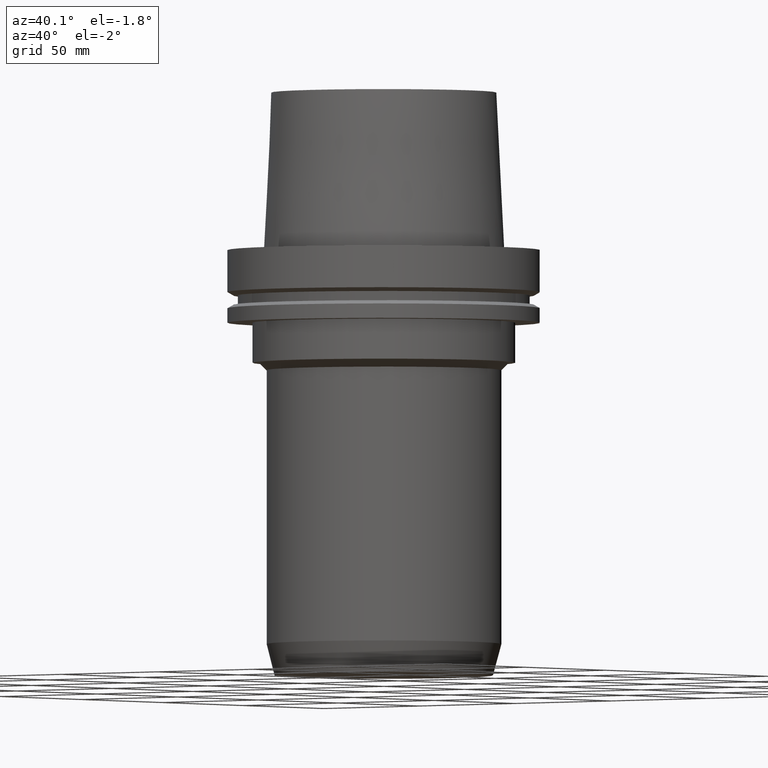
[diagram: clean part render]
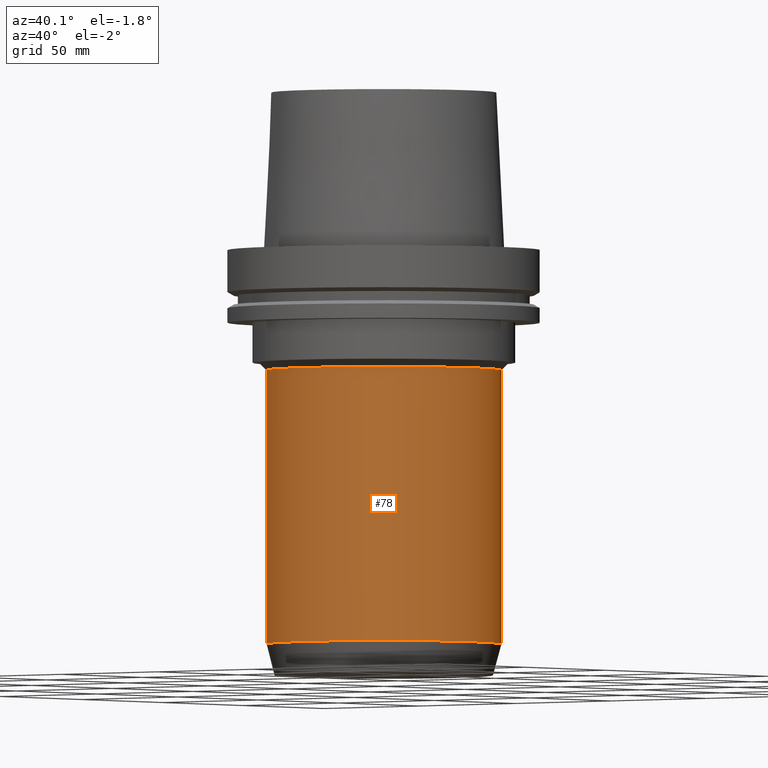
[diagram: same view with one face highlighted and labeled with its STEP entity id]
A machine part, auxiliary view. The second image highlights one B-rep face of the part: STEP entity #78.
In plain terms, the highlighted cylindrical surface (bore or boss wall) has radius 47 mm, axis along (0, 0, -1).
Its self-contained STEP definition (entity closure, byte-faithful):
#78=ADVANCED_FACE('Unnamed[1]',(#191,#192),#193,.T.);
#108=EDGE_CURVE('Unnamed[1]',#239,#239,#240,.T.);
#142=EDGE_CURVE('Unnamed[1]',#291,#291,#292,.T.);
#191=FACE_BOUND('',#339,.T.);
#192=FACE_BOUND('',#340,.T.);
#193=CYLINDRICAL_SURFACE('',#341,46.9999999999985);
#239=VERTEX_POINT('',#399);
#240=CIRCLE('',#400,46.9999999999965);
#291=VERTEX_POINT('',#464);
#292=CIRCLE('',#465,47.0000000000005);
#339=EDGE_LOOP('',(#503));
#340=EDGE_LOOP('',(#504));
#341=AXIS2_PLACEMENT_3D('',#505,#506,#507);
#399=CARTESIAN_POINT('',(2.93915231795366E-015,46.9999999999965,-48.0000000000001));
#400=AXIS2_PLACEMENT_3D('',#558,#559,#560);
#464=CARTESIAN_POINT('',(9.64409354328889E-015,47.0000000000006,-157.500000000057));
#465=AXIS2_PLACEMENT_3D('',#613,#614,#615);
#503=ORIENTED_EDGE('',*,*,#142,.F.);
#504=ORIENTED_EDGE('',*,*,#108,.T.);
#505=CARTESIAN_POINT('',(6.29162293062127E-015,1.25832458612425E-014,-102.750000000029));
#506=DIRECTION('',(6.12323399573677E-017,1.22464679914735E-016,-1.0));
#507=DIRECTION('',(-1.23259516440783E-032,1.0,1.22464679914735E-016));
#558=CARTESIAN_POINT('',(2.93915231795366E-015,5.87830463590731E-015,-48.0000000000001));
#559=DIRECTION('',(6.12323399573677E-017,1.22464679914735E-016,-1.0));
#560=DIRECTION('',(-1.23259516440783E-032,1.0,1.22464679914735E-016));
#613=CARTESIAN_POINT('',(9.64409354328889E-015,1.92881870865778E-014,-157.500000000057));
#614=DIRECTION('',(6.12323399573677E-017,1.22464679914735E-016,-1.0));
#615=DIRECTION('',(-1.23259516440783E-032,1.0,1.22464679914735E-016));